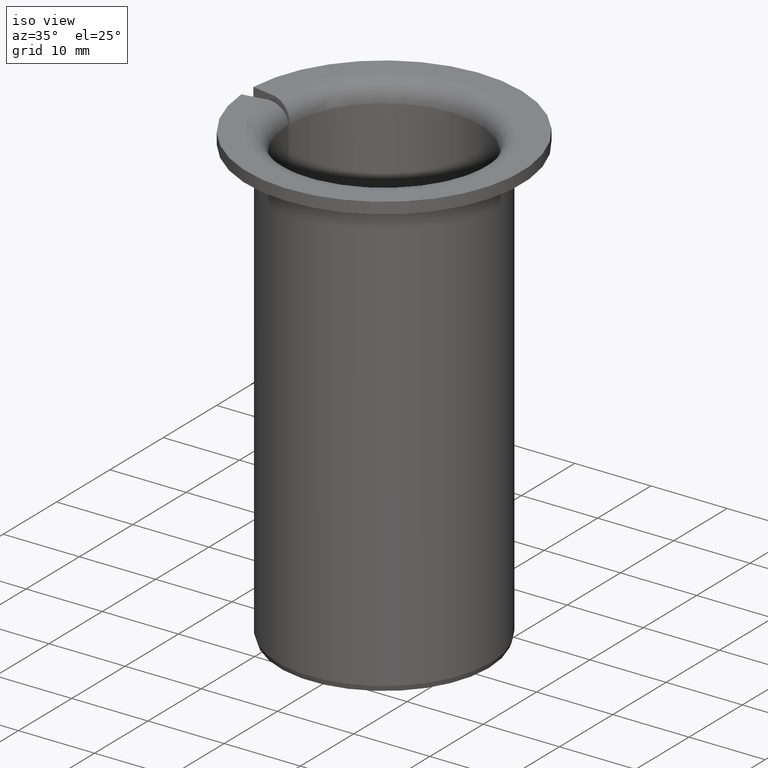
[diagram: clean part render]
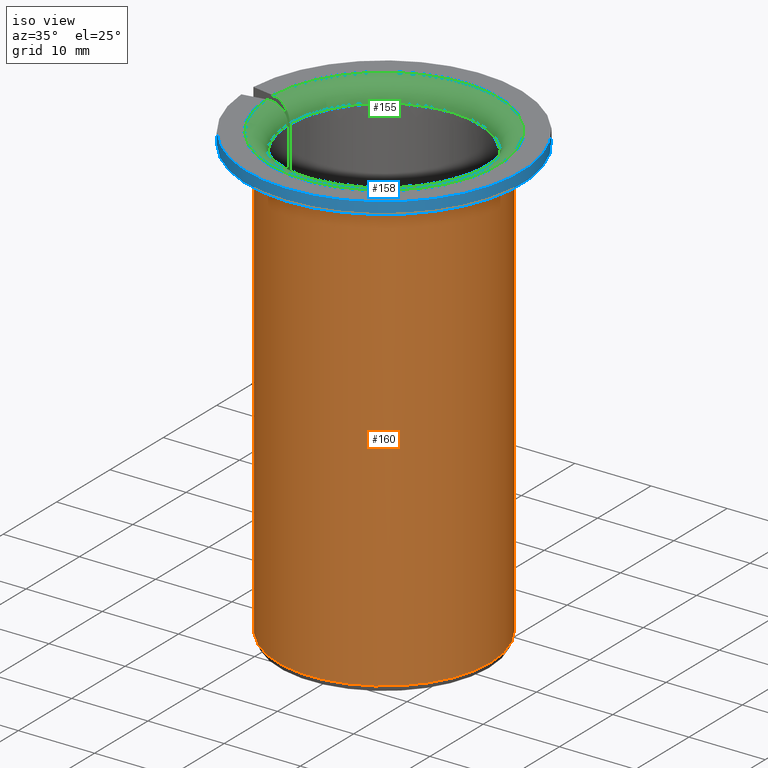
[diagram: same view with three faces highlighted in distinct colors, each labeled with its STEP entity id]
A machine part, iso view with three faces highlighted in distinct colors.
Their STEP definitions:

[orange] entity #160 — the highlighted cylindrical surface (partial cylindrical patch) has radius 14 mm, axis along (-0, 0, -1).
#160=ADVANCED_FACE('',(#181),#182,.T.);
#181=FACE_OUTER_BOUND('',#206,.T.);
#182=CYLINDRICAL_SURFACE('',#207,0.014);
#206=EDGE_LOOP('',(#271,#272,#273,#274));
#207=AXIS2_PLACEMENT_3D('',#275,#276,#277);
#271=ORIENTED_EDGE('',*,*,#330,.T.);
#272=ORIENTED_EDGE('',*,*,#336,.T.);
#273=ORIENTED_EDGE('',*,*,#337,.F.);
#274=ORIENTED_EDGE('',*,*,#317,.F.);
#275=CARTESIAN_POINT('',(0.0,0.0,0.0));
#276=DIRECTION('',(0.0,-6.12323399573677E-017,-1.0));
#277=DIRECTION('',(0.0,1.0,-6.12323399573677E-017));
#317=EDGE_CURVE('',#351,#353,#354,.T.);
#330=EDGE_CURVE('',#351,#374,#376,.T.);
#336=EDGE_CURVE('',#374,#384,#385,.T.);
#337=EDGE_CURVE('',#353,#384,#386,.T.);
#351=VERTEX_POINT('',#419);
#353=VERTEX_POINT('',#428);
#354=LINE('',#429,#430);
#374=VERTEX_POINT('',#476);
#376=CIRCLE('',#485,0.014);
#384=VERTEX_POINT('',#496);
#385=LINE('',#497,#498);
#386=CIRCLE('',#499,0.014);
#419=CARTESIAN_POINT('',(0.0139930965719509,-0.00043960019114672,0.0575));
#428=CARTESIAN_POINT('',(0.0139930965719509,-0.000439600191146724,0.0007));
#429=CARTESIAN_POINT('',(0.0139930965719509,-0.000439600191146724,3.18661350867242E-020));
#430=VECTOR('',#513,1.0);
#476=CARTESIAN_POINT('',(0.0139930965719509,0.000439600191146728,0.0575));
#485=AXIS2_PLACEMENT_3D('',#531,#532,#533);
#496=CARTESIAN_POINT('',(0.0139930965719509,0.000439600191146726,0.0007));
#497=CARTESIAN_POINT('',(0.0139930965719509,0.000439600191146724,-3.92404109852026E-020));
#498=VECTOR('',#543,1.0);
#499=AXIS2_PLACEMENT_3D('',#544,#545,#546);
#513=DIRECTION('',(0.0,-6.12323399573677E-017,-1.0));
#531=CARTESIAN_POINT('',(0.0,3.46944695195362E-018,0.0575));
#532=DIRECTION('',(0.0,-6.12323399573677E-017,-1.0));
#533=DIRECTION('',(0.0,1.0,-6.12323399573677E-017));
#543=DIRECTION('',(0.0,-6.12323399573677E-017,-1.0));
#544=CARTESIAN_POINT('',(0.0,0.0,0.0007));
#545=DIRECTION('',(0.0,-6.12323399573677E-017,-1.0));
#546=DIRECTION('',(0.0,1.0,-6.12323399573677E-017));

[blue] entity #158 — the highlighted cylindrical surface (partial cylindrical patch) has radius 18 mm, axis along (-0, 0, -1).
#158=ADVANCED_FACE('',(#177),#178,.T.);
#177=FACE_OUTER_BOUND('',#202,.T.);
#178=CYLINDRICAL_SURFACE('',#203,0.018);
#202=EDGE_LOOP('',(#257,#258,#259,#260));
#203=AXIS2_PLACEMENT_3D('',#261,#262,#263);
#257=ORIENTED_EDGE('',*,*,#333,.T.);
#258=ORIENTED_EDGE('',*,*,#334,.T.);
#259=ORIENTED_EDGE('',*,*,#331,.F.);
#260=ORIENTED_EDGE('',*,*,#314,.F.);
#261=CARTESIAN_POINT('',(0.0,0.0,0.0));
#262=DIRECTION('',(0.0,-6.12323399573677E-017,-1.0));
#263=DIRECTION('',(0.0,1.0,-6.12323399573677E-017));
#314=EDGE_CURVE('',#345,#347,#348,.T.);
#331=EDGE_CURVE('',#347,#377,#378,.T.);
#333=EDGE_CURVE('',#345,#380,#381,.T.);
#334=EDGE_CURVE('',#380,#377,#382,.T.);
#345=VERTEX_POINT('',#410);
#347=VERTEX_POINT('',#413);
#348=LINE('',#414,#415);
#377=VERTEX_POINT('',#486);
#378=CIRCLE('',#487,0.018);
#380=VERTEX_POINT('',#490);
#381=CIRCLE('',#491,0.018);
#382=LINE('',#492,#493);
#410=CARTESIAN_POINT('',(0.0179638791905746,-0.00113975630133829,0.06));
#413=CARTESIAN_POINT('',(0.0179638791905746,-0.00113975630133829,0.0585));
#414=CARTESIAN_POINT('',(0.0179638791905746,-0.0011397563013383,7.47383320492029E-020));
#415=VECTOR('',#511,1.0);
#486=CARTESIAN_POINT('',(0.0179638791905746,0.0011397563013383,0.0585));
#487=AXIS2_PLACEMENT_3D('',#534,#535,#536);
#490=CARTESIAN_POINT('',(0.0179638791905746,0.0011397563013383,0.06));
#491=AXIS2_PLACEMENT_3D('',#538,#539,#540);
#492=CARTESIAN_POINT('',(0.0179638791905746,0.0011397563013383,-8.21126079476812E-020));
#493=VECTOR('',#541,1.0);
#511=DIRECTION('',(0.0,-6.12323399573677E-017,-1.0));
#534=CARTESIAN_POINT('',(0.0,3.46944695195362E-018,0.0585));
#535=DIRECTION('',(0.0,-6.12323399573677E-017,-1.0));
#536=DIRECTION('',(0.0,1.0,-6.12323399573677E-017));
#538=CARTESIAN_POINT('',(0.0,3.46944695195362E-018,0.06));
#539=DIRECTION('',(0.0,-6.12323399573677E-017,-1.0));
#540=DIRECTION('',(0.0,1.0,-6.12323399573677E-017));
#541=DIRECTION('',(0.0,-6.12323399573677E-017,-1.0));

[green] entity #155 — the highlighted toroidal blend (fillet) surface has major radius 15 mm and minor (blend) radius 2.5 mm.
#155=ADVANCED_FACE('',(#171),#172,.T.);
#171=FACE_OUTER_BOUND('',#196,.T.);
#172=TOROIDAL_SURFACE('',#197,0.015,0.0025);
#196=EDGE_LOOP('',(#236,#237,#238,#239));
#197=AXIS2_PLACEMENT_3D('',#240,#241,#242);
#236=ORIENTED_EDGE('',*,*,#325,.T.);
#237=ORIENTED_EDGE('',*,*,#326,.T.);
#238=ORIENTED_EDGE('',*,*,#327,.F.);
#239=ORIENTED_EDGE('',*,*,#312,.F.);
#240=CARTESIAN_POINT('',(0.0,3.46944695195362E-018,0.0575));
#241=DIRECTION('',(0.0,-6.12323399573677E-017,-1.0));
#242=DIRECTION('',(0.0,1.0,-6.12323399573677E-017));
#312=EDGE_CURVE('',#342,#343,#344,.T.);
#325=EDGE_CURVE('',#342,#367,#368,.T.);
#326=EDGE_CURVE('',#367,#369,#370,.T.);
#327=EDGE_CURVE('',#343,#369,#371,.T.);
#342=VERTEX_POINT('',#392);
#343=VERTEX_POINT('',#393);
#344=B_SPLINE_CURVE_WITH_KNOTS('',3,(#394,#395,#396,#397,#398,#399,#400,#401,#402,#403,#404,#405,#406,#407,#408,#409),.UNSPECIFIED.,.F.,.F.,(4,2,2,2,2,2,2,4),(1.97145494869644E-007,0.000490956975303938,0.000981716805113005,0.00147247663492207,0.00196323646473114,0.00294475612434926,0.00343551595415832,0.00392627578396738),.UNSPECIFIED.);
#367=VERTEX_POINT('',#454);
#368=CIRCLE('',#455,0.0125);
#369=VERTEX_POINT('',#456);
#370=B_SPLINE_CURVE_WITH_KNOTS('',3,(#457,#458,#459,#460,#461,#462,#463,#464,#465,#466,#467,#468,#469,#470,#471,#472),.UNSPECIFIED.,.F.,.F.,(4,2,2,2,2,2,2,4),(1.97145494869644E-007,0.000490956975303938,0.000981716805113006,0.00147247663492207,0.00196323646473114,0.00294475612434926,0.00343551595415832,0.00392627578396739),.UNSPECIFIED.);
#371=CIRCLE('',#473,0.015);
#392=CARTESIAN_POINT('',(0.0124987593741588,-0.000176108224899695,0.0575));
#393=CARTESIAN_POINT('',(0.0149873904376732,-0.000614921026426486,0.06));
#394=CARTESIAN_POINT('',(0.0124987593741588,-0.000176108224899697,0.0575));
#395=CARTESIAN_POINT('',(0.0124987593741588,-0.000176108224899697,0.0576659540617433));
#396=CARTESIAN_POINT('',(0.0125150815118394,-0.000178986258155628,0.0578290782116201));
#397=CARTESIAN_POINT('',(0.0125789800353603,-0.000190253291879798,0.0581499076888224));
#398=CARTESIAN_POINT('',(0.0126273659798975,-0.000198785039388772,0.0583093132060542));
#399=CARTESIAN_POINT('',(0.0127532817338426,-0.000220987384105527,0.0586125714804484));
#400=CARTESIAN_POINT('',(0.0128302677574786,-0.000234562097210013,0.0587563093836828));
#401=CARTESIAN_POINT('',(0.0130119717275916,-0.00026660140964279,0.0590281851899079));
#402=CARTESIAN_POINT('',(0.0131174046879831,-0.000285192085215767,0.0591564943911331));
#403=CARTESIAN_POINT('',(0.0134622690635679,-0.000346000979316544,0.0595012445059386));
#404=CARTESIAN_POINT('',(0.0137395143722855,-0.000394886807518307,0.0596864315366915));
#405=CARTESIAN_POINT('',(0.0141868514423611,-0.000473764402443722,0.0598723118141732));
#406=CARTESIAN_POINT('',(0.0143431076821919,-0.00050131659342994,0.0599200687694237));
#407=CARTESIAN_POINT('',(0.0146625924091174,-0.000557650370711179,0.0599839523182036));
#408=CARTESIAN_POINT('',(0.0148241001865554,-0.000586128549467751,0.06));
#409=CARTESIAN_POINT('',(0.0149873904376732,-0.000614921026426486,0.06));
#454=CARTESIAN_POINT('',(0.0124987593741588,0.000176108224899704,0.0575));
#455=AXIS2_PLACEMENT_3D('',#522,#523,#524);
#456=CARTESIAN_POINT('',(0.0149873904376732,0.000614921026426495,0.06));
#457=CARTESIAN_POINT('',(0.0124987593741588,0.000176108224899703,0.0575));
#458=CARTESIAN_POINT('',(0.0124987593741588,0.000176108224899703,0.0576659540617433));
#459=CARTESIAN_POINT('',(0.0125150815118394,0.000178986258155635,0.0578290782116201));
#460=CARTESIAN_POINT('',(0.0125789800353603,0.000190253291879805,0.0581499076888224));
#461=CARTESIAN_POINT('',(0.0126273659798975,0.000198785039388778,0.0583093132060542));
#462=CARTESIAN_POINT('',(0.0127532817338426,0.000220987384105533,0.0586125714804484));
#463=CARTESIAN_POINT('',(0.0128302677574786,0.000234562097210019,0.0587563093836828));
#464=CARTESIAN_POINT('',(0.0130119717275916,0.000266601409642796,0.0590281851899079));
#465=CARTESIAN_POINT('',(0.0131174046879831,0.000285192085215773,0.0591564943911331));
#466=CARTESIAN_POINT('',(0.0134622690635679,0.000346000979316551,0.0595012445059386));
#467=CARTESIAN_POINT('',(0.0137395143722855,0.000394886807518313,0.0596864315366915));
#468=CARTESIAN_POINT('',(0.0141868514423611,0.000473764402443729,0.0598723118141732));
#469=CARTESIAN_POINT('',(0.0143431076821919,0.000501316593429947,0.0599200687694237));
#470=CARTESIAN_POINT('',(0.0146625924091174,0.000557650370711186,0.0599839523182036));
#471=CARTESIAN_POINT('',(0.0148241001865554,0.000586128549467759,0.06));
#472=CARTESIAN_POINT('',(0.0149873904376732,0.000614921026426493,0.06));
#473=AXIS2_PLACEMENT_3D('',#525,#526,#527);
#522=CARTESIAN_POINT('',(0.0,3.46944695195362E-018,0.0575));
#523=DIRECTION('',(0.0,-6.12323399573677E-017,-1.0));
#524=DIRECTION('',(0.0,1.0,-6.12323399573677E-017));
#525=CARTESIAN_POINT('',(0.0,3.46944695195362E-018,0.06));
#526=DIRECTION('',(0.0,-6.12323399573677E-017,-1.0));
#527=DIRECTION('',(0.0,1.0,-6.12323399573677E-017));